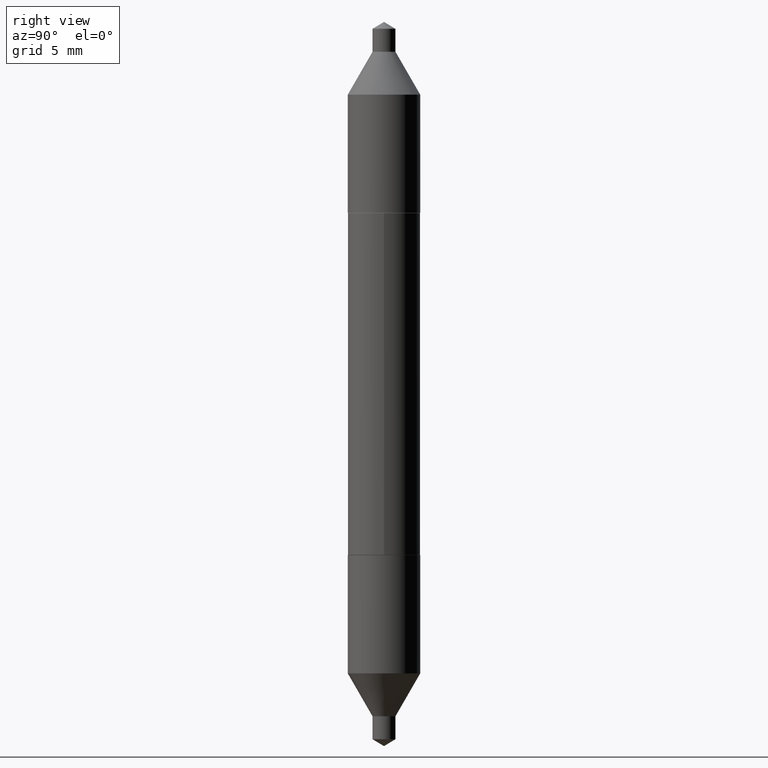
[diagram: clean part render]
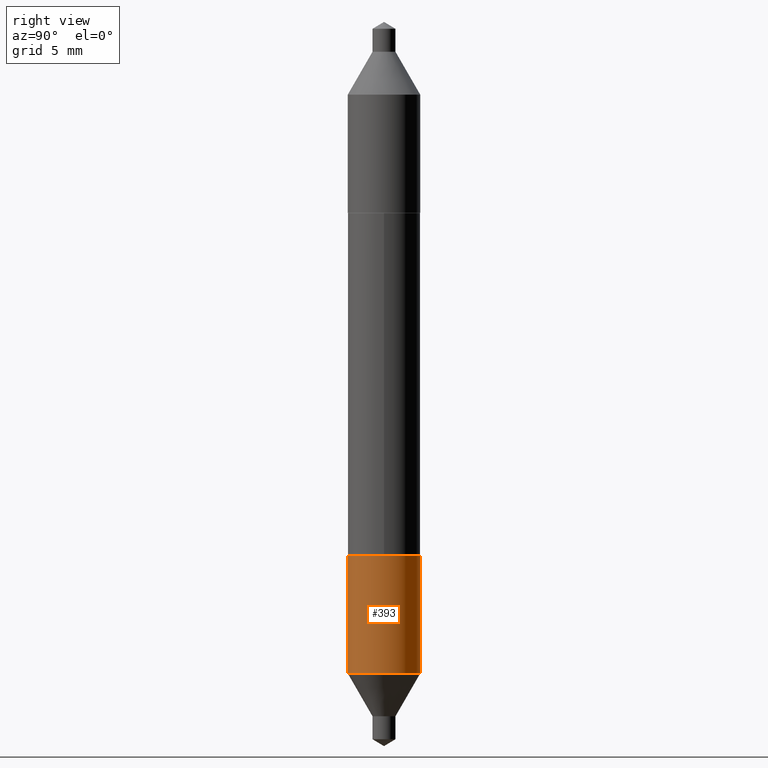
[diagram: same view with one face highlighted and labeled with its STEP entity id]
A machine part, right view. The second image highlights one B-rep face of the part: STEP entity #393.
In plain terms, the highlighted cylindrical surface (edge-blend (fillet) strip) has radius 1.5748 mm, axis along (-0, 0, 1).
Its self-contained STEP definition (entity closure, byte-faithful):
#8 = CARTESIAN_POINT ( 'NONE',  ( -4.329436860165363363E-16, -0.06200000000000172734, -0.4955342508398351553 ) ) ;
#47 = EDGE_CURVE ( 'NONE', #637, #341, #437, .T. ) ;
#83 = CARTESIAN_POINT ( 'NONE',  ( 7.165223602122447572E-30, -1.023004032281041323E-15, -0.2929999999999999272 ) ) ;
#90 = FACE_OUTER_BOUND ( 'NONE', #668, .T. ) ;
#114 = AXIS2_PLACEMENT_3D ( 'NONE', #308, #354, #258 ) ;
#122 = CARTESIAN_POINT ( 'NONE',  ( 4.405364961712740929E-16, 0.06199999999999896566, -0.2930000000000001492 ) ) ;
#214 = CARTESIAN_POINT ( 'NONE',  ( 1.218699198171901377E-29, -1.720287953521743854E-15, -0.4955342508398353774 ) ) ;
#232 = EDGE_CURVE ( 'NONE', #319, #674, #269, .T. ) ;
#258 = DIRECTION ( 'NONE',  ( -6.982962677686265922E-15, -1.000000000000000000, 3.304654831045479808E-15 ) ) ;
#269 = LINE ( 'NONE', #474, #695 ) ;
#298 = DIRECTION ( 'NONE',  ( -2.479466242758017580E-29, 3.442795074656859264E-15, 1.000000000000000000 ) ) ;
#308 = CARTESIAN_POINT ( 'NONE',  ( 7.165223602122447572E-30, -1.023004032281041323E-15, -0.2929999999999999272 ) ) ;
#309 = DIRECTION ( 'NONE',  ( -2.479466242758017580E-29, 3.442795074656859264E-15, 1.000000000000000000 ) ) ;
#319 = VERTEX_POINT ( 'NONE', #578 ) ;
#324 = DIRECTION ( 'NONE',  ( -6.982962677686265922E-15, -1.000000000000000000, 3.304654831045479413E-15 ) ) ;
#338 = ORIENTED_EDGE ( 'NONE', *, *, #510, .T. ) ;
#341 = VERTEX_POINT ( 'NONE', #412 ) ;
#354 = DIRECTION ( 'NONE',  ( -2.479466242758017580E-29, 3.442795074656859264E-15, 1.000000000000000000 ) ) ;
#358 = ORIENTED_EDGE ( 'NONE', *, *, #373, .F. ) ;
#373 = EDGE_CURVE ( 'NONE', #341, #674, #650, .T. ) ;
#390 = DIRECTION ( 'NONE',  ( -2.479466242758017580E-29, 3.442795074656859264E-15, 1.000000000000000000 ) ) ;
#393 = ADVANCED_FACE ( 'NONE', ( #90 ), #618, .T. ) ;
#412 = CARTESIAN_POINT ( 'NONE',  ( -4.329436860165412667E-16, -0.06200000000000101957, -0.2929999999999997051 ) ) ;
#420 = DIRECTION ( 'NONE',  ( -2.479466242758017580E-29, 3.442795074656859264E-15, 1.000000000000000000 ) ) ;
#437 = LINE ( 'NONE', #599, #609 ) ;
#453 = CIRCLE ( 'NONE', #463, 0.06200000000000000649 ) ;
#463 = AXIS2_PLACEMENT_3D ( 'NONE', #214, #309, #324 ) ;
#474 = CARTESIAN_POINT ( 'NONE',  ( 4.405364961712692118E-16, 0.06199999999999897260, -0.2930000000000001492 ) ) ;
#510 = EDGE_CURVE ( 'NONE', #637, #319, #453, .T. ) ;
#511 = DIRECTION ( 'NONE',  ( -6.982962677686265922E-15, -1.000000000000000000, 3.304654831045479808E-15 ) ) ;
#513 = ORIENTED_EDGE ( 'NONE', *, *, #47, .F. ) ;
#522 = ORIENTED_EDGE ( 'NONE', *, *, #232, .T. ) ;
#578 = CARTESIAN_POINT ( 'NONE',  ( 4.405364961712718249E-16, 0.06199999999999829259, -0.4955342508398355439 ) ) ;
#595 = AXIS2_PLACEMENT_3D ( 'NONE', #83, #298, #511 ) ;
#599 = CARTESIAN_POINT ( 'NONE',  ( -4.329436860165412667E-16, -0.06200000000000101957, -0.2929999999999997051 ) ) ;
#609 = VECTOR ( 'NONE', #390, 39.37007874015748143 ) ;
#618 = CYLINDRICAL_SURFACE ( 'NONE', #595, 0.06199999999999999956 ) ;
#637 = VERTEX_POINT ( 'NONE', #8 ) ;
#650 = CIRCLE ( 'NONE', #114, 0.06199999999999999956 ) ;
#668 = EDGE_LOOP ( 'NONE', ( #338, #522, #358, #513 ) ) ;
#674 = VERTEX_POINT ( 'NONE', #122 ) ;
#695 = VECTOR ( 'NONE', #420, 39.37007874015748143 ) ;